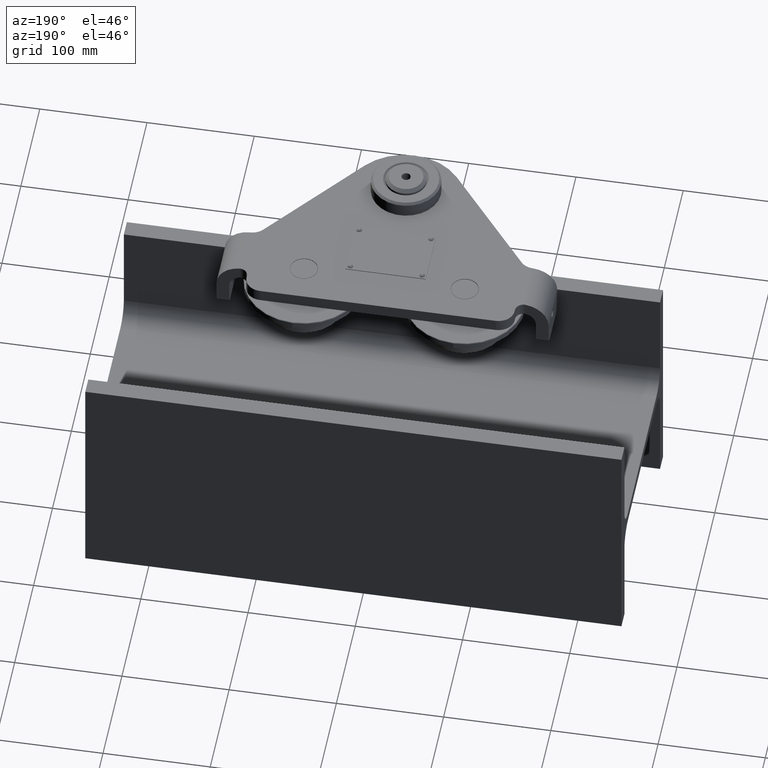
[diagram: clean part render]
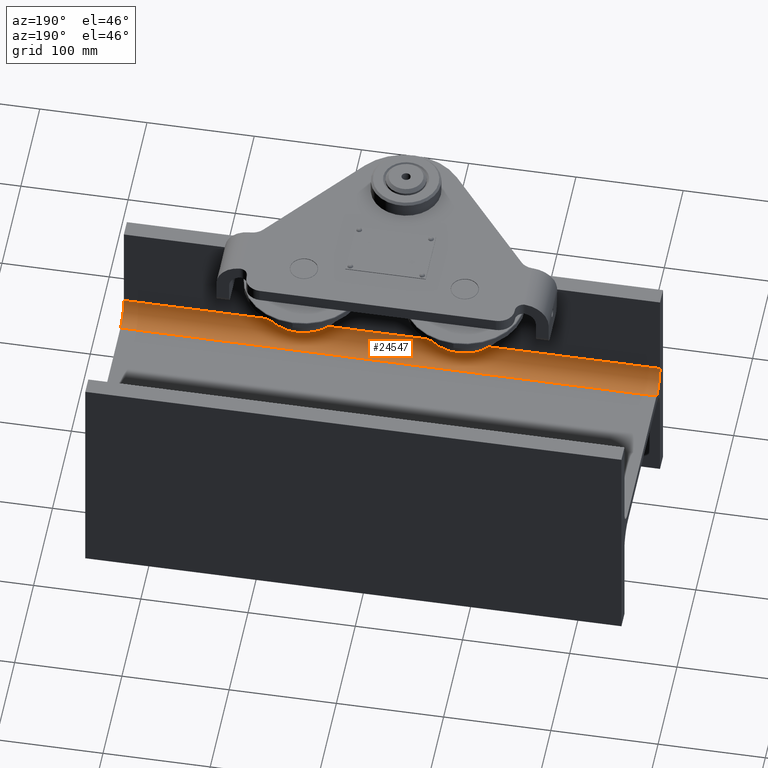
[diagram: same view with one face highlighted and labeled with its STEP entity id]
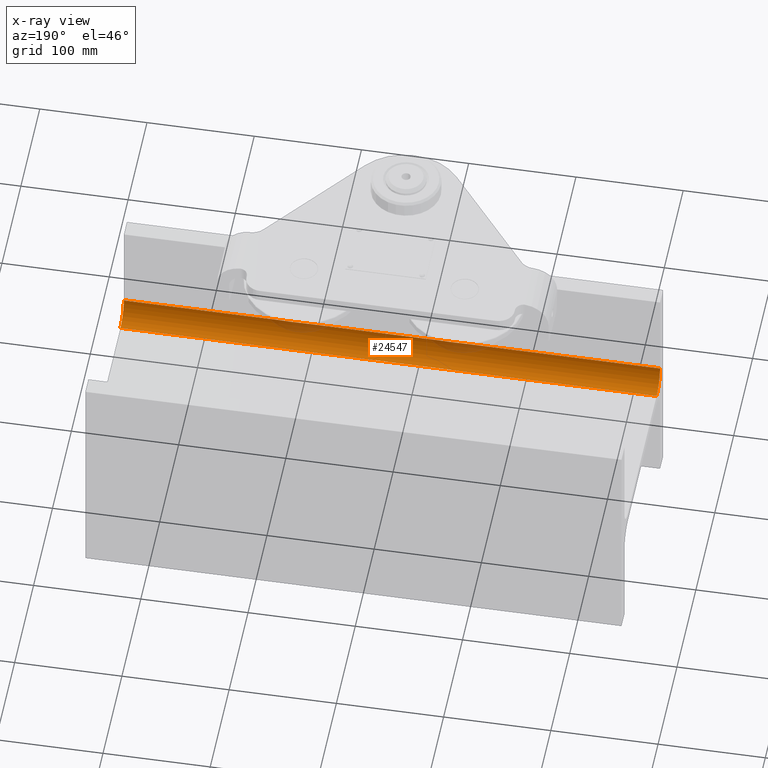
[diagram: x-ray of the same camera — body ghosted, the highlighted face saturated]
A machine part, auxiliary view. The second image highlights one B-rep face of the part: STEP entity #24547.
The next image is the same camera in x-ray: the body ghosted, the highlighted face saturated — about 5% of this face is hidden behind the body in this view.
In plain terms, the highlighted cylindrical surface (edge-blend (fillet) strip) has radius 18 mm, axis along (1, 0, 0).
Its self-contained STEP definition (entity closure, byte-faithful):
#16 = EDGE_CURVE ( 'NONE', #26024, #28366, #24118, .T. ) ;
#1227 = AXIS2_PLACEMENT_3D ( 'NONE', #15846, #34218, #9687 ) ;
#2218 = VECTOR ( 'NONE', #17453, 1000.000000000000000 ) ;
#2863 = CYLINDRICAL_SURFACE ( 'NONE', #8964, 18.00000000000001400 ) ;
#4461 = ORIENTED_EDGE ( 'NONE', *, *, #13689, .T. ) ;
#5114 = CARTESIAN_POINT ( 'NONE',  ( -249.9999999999996000, -75.99999999999967300, 4.750000000000063900 ) ) ;
#5263 = DIRECTION ( 'NONE',  ( 1.000000000000000000, 0.0000000000000000000, 7.703719777548941700E-034 ) ) ;
#5877 = CIRCLE ( 'NONE', #25999, 18.00000000000001400 ) ;
#6619 = EDGE_LOOP ( 'NONE', ( #8782, #32012, #22056, #4461 ) ) ;
#6799 = CARTESIAN_POINT ( 'NONE',  ( 250.0000000000005100, -75.99999999999967300, 4.750000000000063900 ) ) ;
#8782 = ORIENTED_EDGE ( 'NONE', *, *, #35133, .T. ) ;
#8964 = AXIS2_PLACEMENT_3D ( 'NONE', #33967, #27906, #30780 ) ;
#9687 = DIRECTION ( 'NONE',  ( 0.0000000000000000000, 0.0000000000000000000, -1.000000000000000000 ) ) ;
#13501 = DIRECTION ( 'NONE',  ( 0.0000000000000000000, 0.0000000000000000000, -1.000000000000000000 ) ) ;
#13689 = EDGE_CURVE ( 'NONE', #37496, #32035, #24380, .T. ) ;
#15846 = CARTESIAN_POINT ( 'NONE',  ( -249.9999999999996000, -75.99999999999967300, 22.75000000000007800 ) ) ;
#16233 = CARTESIAN_POINT ( 'NONE',  ( 250.0000000000005100, -93.99999999999970200, 22.75000000000001400 ) ) ;
#17453 = DIRECTION ( 'NONE',  ( 1.000000000000000000, 0.0000000000000000000, 7.703719777548941700E-034 ) ) ;
#19596 = CARTESIAN_POINT ( 'NONE',  ( 250.0000000000005100, -75.99999999999967300, 22.75000000000007800 ) ) ;
#19827 = CARTESIAN_POINT ( 'NONE',  ( -249.9999999999996000, -93.99999999999970200, 22.75000000000001400 ) ) ;
#22056 = ORIENTED_EDGE ( 'NONE', *, *, #33265, .F. ) ;
#24118 = LINE ( 'NONE', #5114, #2218 ) ;
#24380 = LINE ( 'NONE', #31850, #37575 ) ;
#24547 = ADVANCED_FACE ( 'NONE', ( #34149 ), #2863, .F. ) ;
#25022 = CARTESIAN_POINT ( 'NONE',  ( -249.9999999999996000, -75.99999999999967300, 4.750000000000063900 ) ) ;
#25999 = AXIS2_PLACEMENT_3D ( 'NONE', #19596, #5263, #13501 ) ;
#26024 = VERTEX_POINT ( 'NONE', #25022 ) ;
#27906 = DIRECTION ( 'NONE',  ( 1.000000000000000000, 0.0000000000000000000, 7.703719777548941700E-034 ) ) ;
#28366 = VERTEX_POINT ( 'NONE', #6799 ) ;
#30780 = DIRECTION ( 'NONE',  ( 0.0000000000000000000, 0.0000000000000000000, -1.000000000000000000 ) ) ;
#31768 = CIRCLE ( 'NONE', #1227, 18.00000000000001400 ) ;
#31850 = CARTESIAN_POINT ( 'NONE',  ( -249.9999999999996000, -93.99999999999970200, 22.75000000000001400 ) ) ;
#32012 = ORIENTED_EDGE ( 'NONE', *, *, #16, .F. ) ;
#32035 = VERTEX_POINT ( 'NONE', #16233 ) ;
#33265 = EDGE_CURVE ( 'NONE', #37496, #26024, #31768, .T. ) ;
#33967 = CARTESIAN_POINT ( 'NONE',  ( -249.9999999999996000, -75.99999999999967300, 22.75000000000007800 ) ) ;
#34149 = FACE_OUTER_BOUND ( 'NONE', #6619, .T. ) ;
#34218 = DIRECTION ( 'NONE',  ( 1.000000000000000000, 0.0000000000000000000, 7.703719777548941700E-034 ) ) ;
#34759 = DIRECTION ( 'NONE',  ( 1.000000000000000000, 0.0000000000000000000, 7.703719777548941700E-034 ) ) ;
#35133 = EDGE_CURVE ( 'NONE', #32035, #28366, #5877, .T. ) ;
#37496 = VERTEX_POINT ( 'NONE', #19827 ) ;
#37575 = VECTOR ( 'NONE', #34759, 1000.000000000000000 ) ;